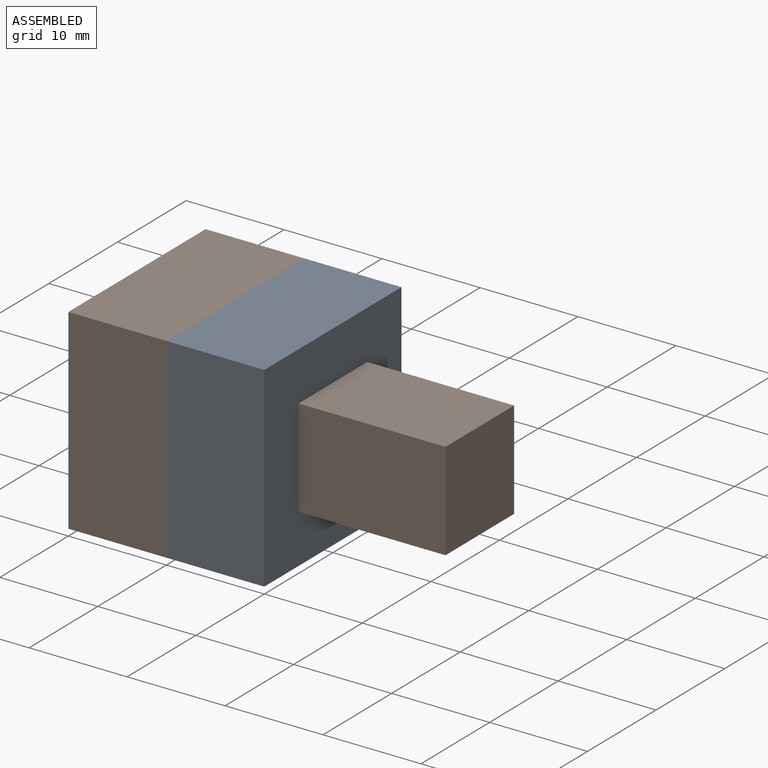
[diagram: assembled view]
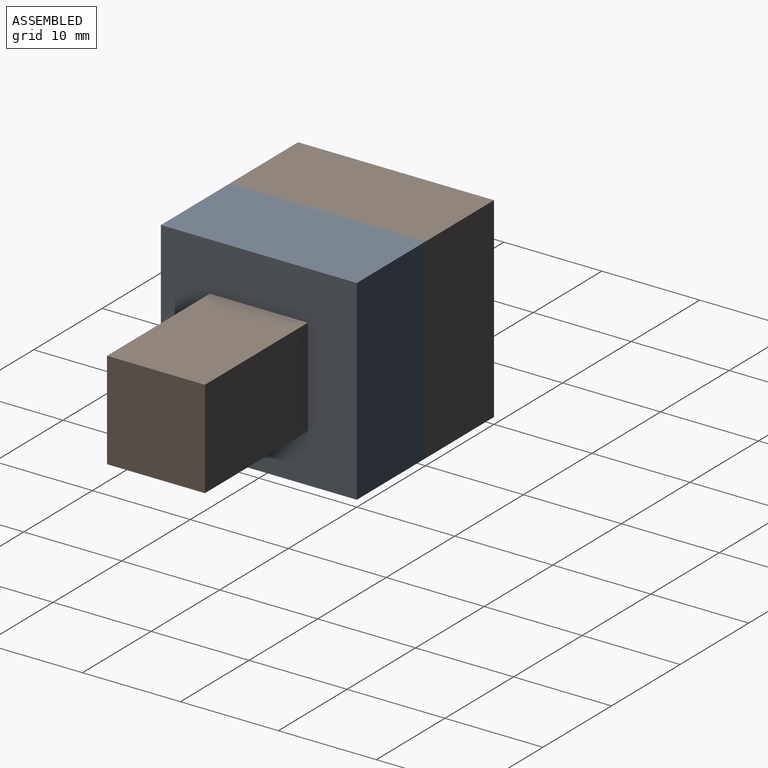
[diagram: assembled view, second angle]
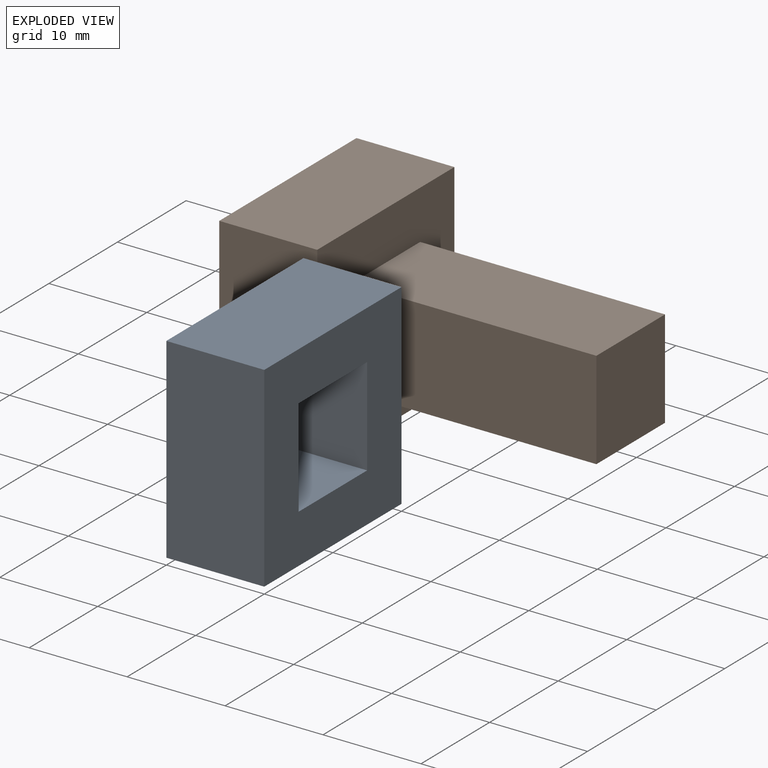
[diagram: exploded view]
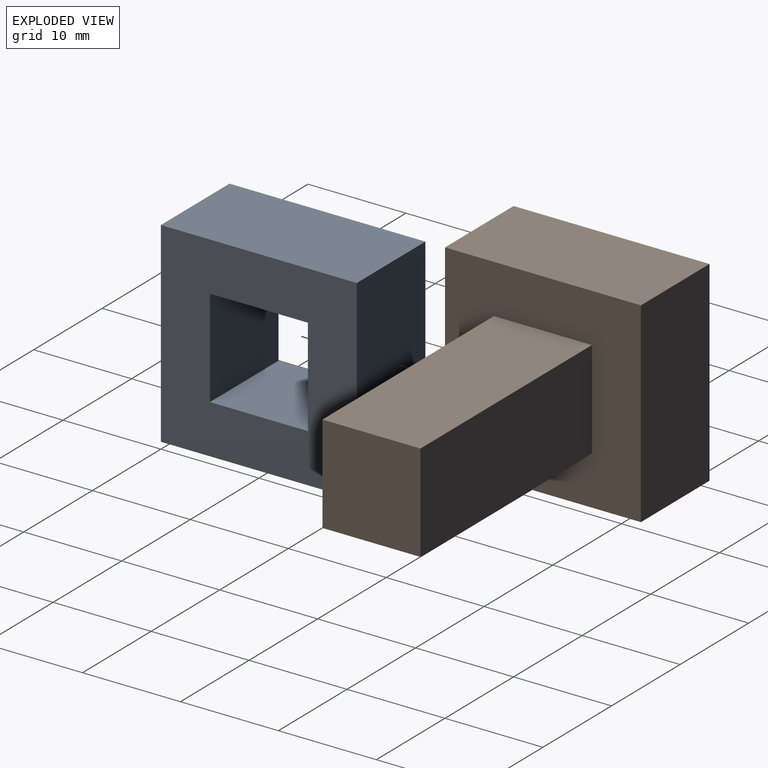
[diagram: exploded view, second angle]
ASSEMBLY  parts=2 mates=3
PART A: 10 faces, bbox 10x20x20 mm
  f0: plane 10x10mm, normal (0,0,1), area 100mm2, adj f1,f7,f8,f9
  f1: plane 10x10mm, normal (0,1,0), area 100mm2, adj f0,f2,f8,f9
  f2: plane 10x10mm, normal (0,0,-1), area 100mm2, adj f1,f7,f8,f9
  f3: plane 20x10mm, normal (0,-1,0), area 200mm2, adj f4,f6,f8,f9
  f4: plane 20x10mm, normal (0,0,-1), area 200mm2, adj f3,f5,f8,f9
  f5: plane 20x10mm, normal (0,1,0), area 200mm2, adj f4,f6,f8,f9
  f6: plane 20x10mm, normal (0,0,1), area 200mm2, adj f3,f5,f8,f9
  f7: plane 10x10mm, normal (0,-1,0), area 100mm2, adj f0,f2,f8,f9
  f8: plane 20x20mm, normal (1,0,0), area 300mm2, adj f0,f1,f2,f3,f4,f5,f6,f7
  f9: plane 20x20mm, normal (-1,0,0), area 300mm2, adj f0,f1,f2,f3,f4,f5,f6,f7
PART B: 11 faces, bbox 35x20x20 mm
  f0: plane 20x20mm, normal (1,0,0), area 300mm2, adj f1,f2,f3,f4,f6,f7,f8,f9
  f1: plane 20x10mm, normal (0,-1,0), area 200mm2, adj f0,f2,f4,f5
  f2: plane 20x10mm, normal (0,0,-1), area 200mm2, adj f0,f1,f3,f5
  f3: plane 20x10mm, normal (0,1,0), area 200mm2, adj f0,f2,f4,f5
  f4: plane 20x10mm, normal (0,0,1), area 200mm2, adj f0,f1,f3,f5
  f5: plane 20x20mm, normal (-1,0,0), area 400mm2, adj f1,f2,f3,f4
  f6: plane 25x10mm, normal (0,1,0), area 250mm2, adj f0,f7,f9,f10
  f7: plane 25x10mm, normal (0,0,1), area 250mm2, adj f0,f6,f8,f10
  f8: plane 25x10mm, normal (0,-1,0), area 250mm2, adj f0,f7,f9,f10
  f9: plane 25x10mm, normal (0,0,-1), area 250mm2, adj f0,f6,f8,f10
  f10: plane 10x10mm, normal (1,0,0), area 100mm2, adj f6,f7,f8,f9
PLACE A t=(10,0,0)mm
PLACE B at identity fixed
MATE planar A.f1 <-> B.f8  axis (0,1,0) through (15,5,10)mm
MATE planar A.f9 <-> B.f0  axis (-1,0,0) through (10,5,15)mm
MATE planar A.f2 <-> B.f7  axis (0,0,-1) through (15,10,15)mm
